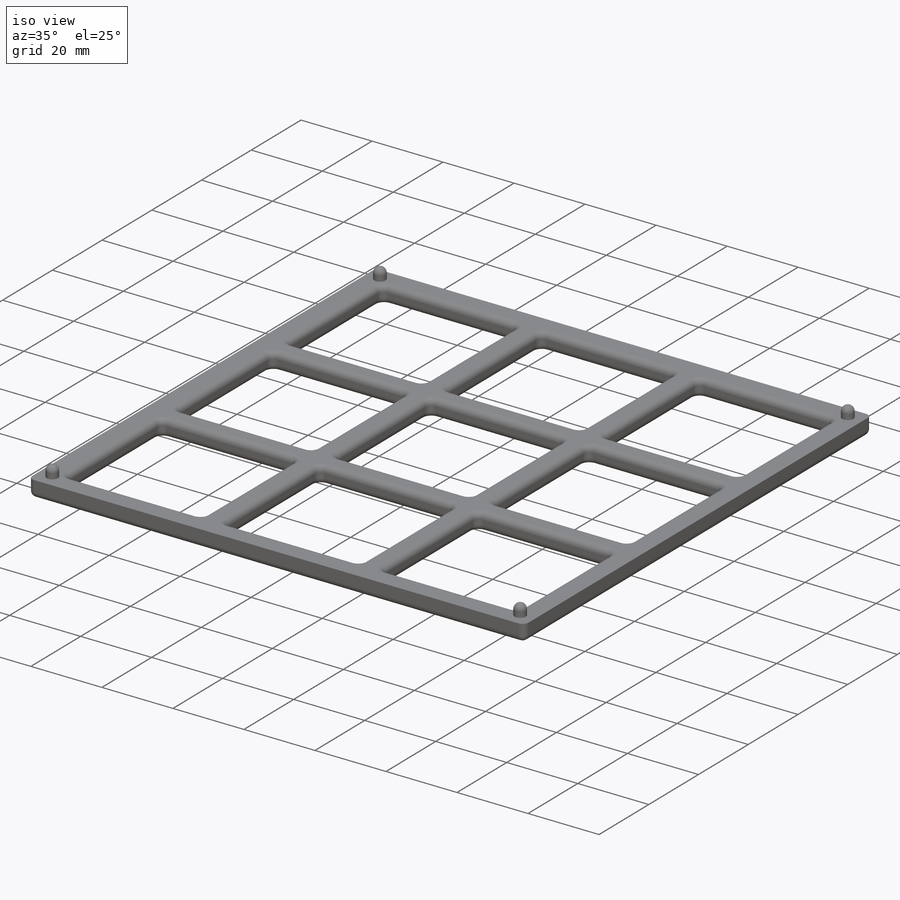
[diagram: iso view]
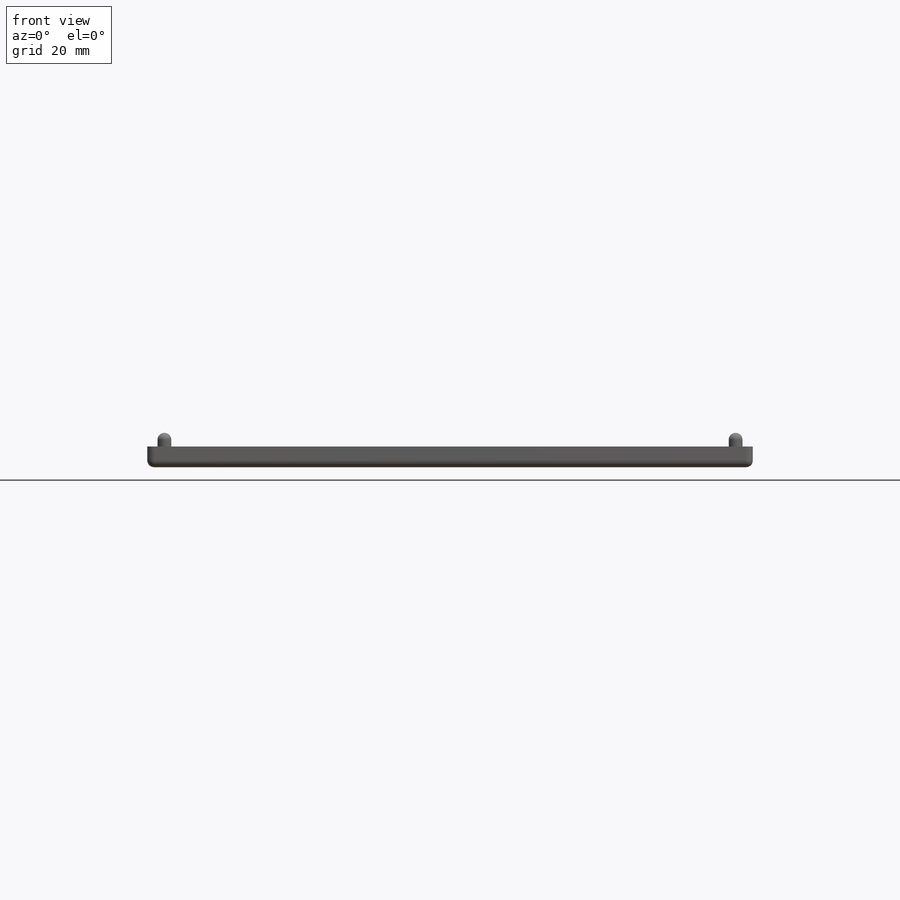
[diagram: front view]
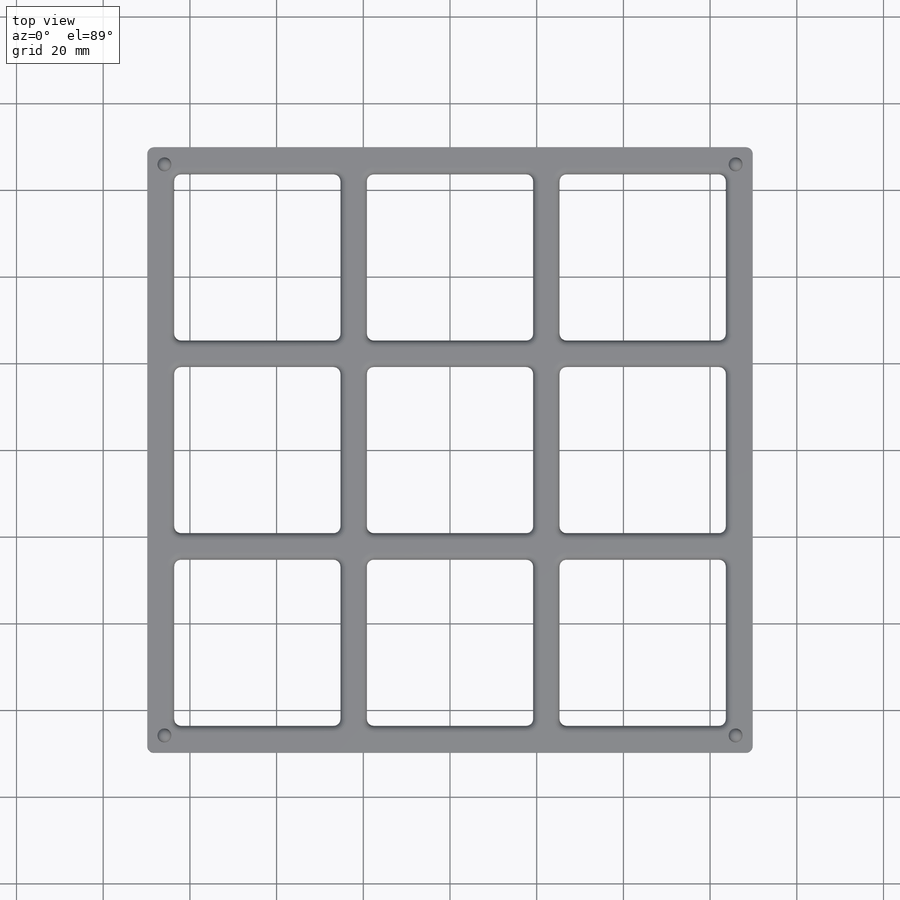
[diagram: top view]
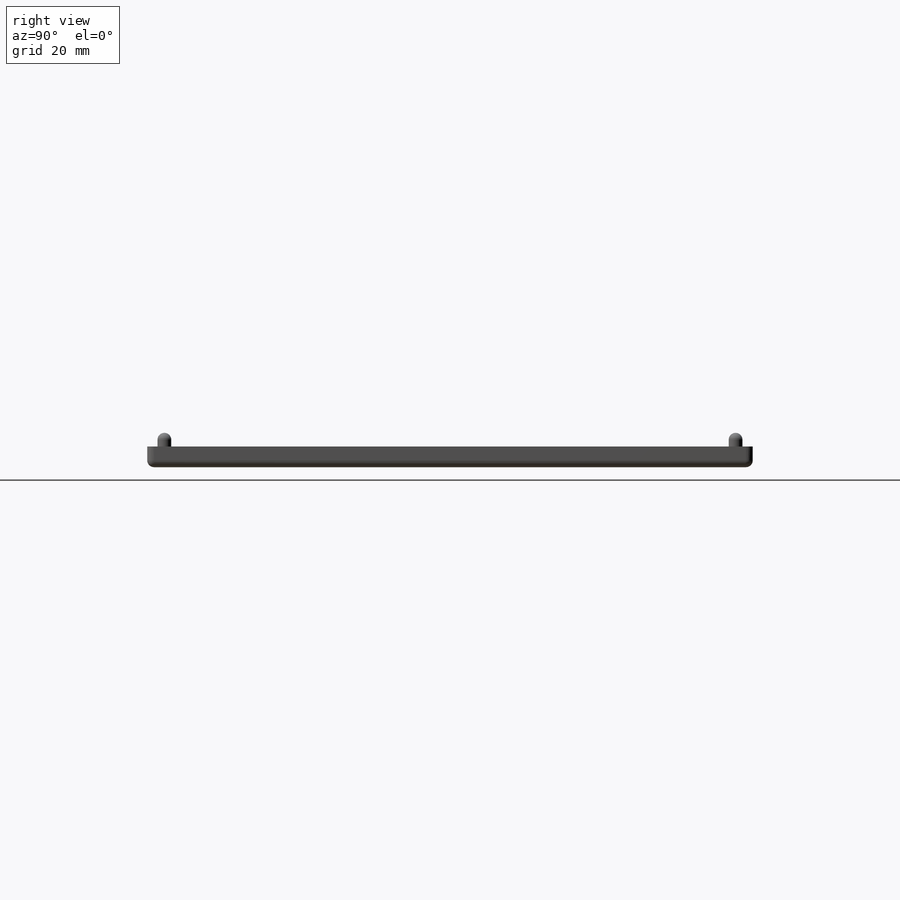
[diagram: right view]
SOLIDWORKS PART (.sldprt)
format: sldprt  version: not decoded by parser v0  size: 608,768 bytes
history: native  units: mm
features: sketch x3, extrude x2, fillet x2, material x1, cut_extrude x1 (+12 scaffold rows collapsed)
feature tree (21):
  scaffold x12  (default folders/planes/origin — collapsed)
  material  "Material <not specified>"
  sketch  "Sketch1"  dims[D1=139.7mm D2=139.7mm]
  extrude  "Boss-Extrude1"  Depth=4.7625mm
  sketch  "Sketch2"  dims[D1=38.354mm D2=38.354mm D3=6.223mm D4=6.223mm D5=3.0 D6=3.0]
  cut_extrude  "Cut-Extrude1"  Depth=4.7625mm
  fillet  "Fillet2"  Radius=1.5875mm
  sketch  "Sketch3"  dims[c1.D3=3.175mm c1.D4=~5.447041mm c1.D5=~5.447041mm c1.D6=3.175mm c1.D7=~4.157354mm c1.D8=~4.157354mm c1.D9=3.175mm c1.D10=~3.659621mm c1.D11=~3.659621mm c1.D12=3.175mm c1.D1=~3.96875mm c1.D2=~3.96875mm c2.D4=~3.96875mm c2.D5=~3.96875mm c2.D7=~3.96875mm c2.D8=~3.96875mm c2.D10=~3.96875mm c2.D11=~3.96875mm]
  extrude  "Boss-Extrude2"  Depth=3.175mm
  fillet  "Fillet3"  Radius=1.5875mm
decode coverage: 8 of 8 modeling features carry decoded parameters
note: ~ marks probable driven/reference dimensions
note: suppression state not decoded; provenance and decode notes live in map.json
